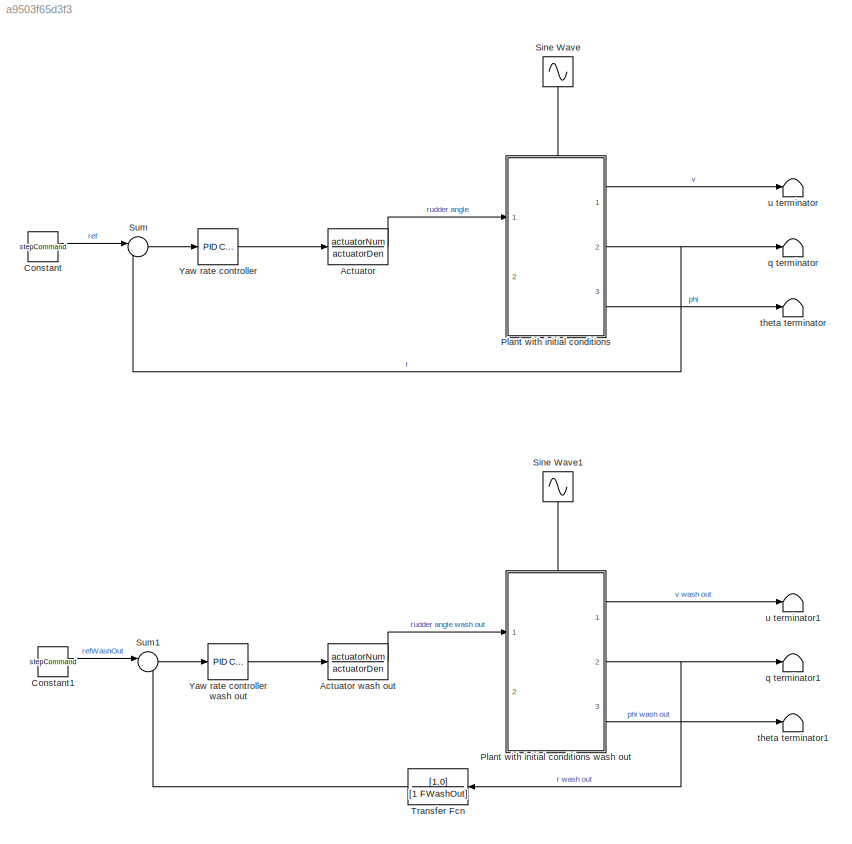
MODEL slx_a9503f65d3f3
KIND model
CONFIG AbsTol = auto
CONFIG EnableMultiTasking = off
CONFIG FixedStep = auto
CONFIG MaxStep = auto
CONFIG MinStep = auto
CONFIG RelTol = 1e-3
CONFIG SampleTimeConstraint = Unconstrained
CONFIG SolverName = ode15s
CONFIG StartTime = 0.0
CONFIG StopTime = 5
BLOCK [TransferFcn] Actuator
  Denominator = actuatorDen
  Numerator = actuatorNum
BLOCK [TransferFcn] Actuator wash out
  Denominator = actuatorDen
  Numerator = actuatorNum
BLOCK [Constant] Constant
  NameLocation = top
  Value = stepCommand
BLOCK [Constant] Constant1
  NameLocation = top
  Value = stepCommand
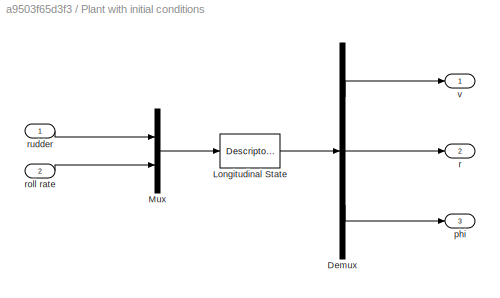
BLOCK [SubSystem] Plant with initial conditions
  PortSchema = {"entries":[{"content":{"sides":[{"content":{"connectorIds":["In1"]},"type":"ConnectorPlacement.EquallySpacedRectSide","uuid":"9289d697-068e-4568-8078-07f153e8e6b2"},{"content":{"connectorIds":["Out1","Out2","Out3"],"side":"RIGHT"},"type":"ConnectorPlacement.EquallySpacedRectSide","uuid":"07e3031a-d198-40ae-947d-4a1b1bfc261d"},{"content":{"connectorIds":["In2"],"side":"TOP"},"type":"ConnectorPlace...<+403ch>
  Ports = [2, 3]
  RequestExecContextInheritance = off
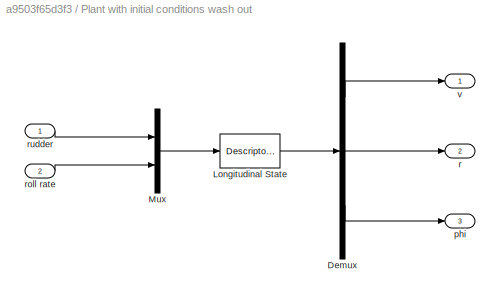
BLOCK [SubSystem] Plant with initial conditions wash out
  PortSchema = {"entries":[{"content":{"sides":[{"content":{"connectorIds":["In1"]},"type":"ConnectorPlacement.EquallySpacedRectSide","uuid":"9289d697-068e-4568-8078-07f153e8e6b2"},{"content":{"connectorIds":["Out1","Out2","Out3"],"side":"RIGHT"},"type":"ConnectorPlacement.EquallySpacedRectSide","uuid":"07e3031a-d198-40ae-947d-4a1b1bfc261d"},{"content":{"connectorIds":["In2"],"side":"TOP"},"type":"ConnectorPlace...<+403ch>
  Ports = [2, 3]
  RequestExecContextInheritance = off
BLOCK [Demux] Plant with initial conditions wash out/Demux
  Outputs = 3
  Ports = [1, 3]
BLOCK [DescriptorStateSpace] Plant with initial conditions wash out/Longitudinal State 
  A = ALatWashOut
  B = BLatWashOut
  C = CLatWashOut
  ContinuousStateAttributes = 'LateralSystem'
  D = DLatWashOut
  E = ELatWashOut
  InitialCondition = InitialConditionsWashOut
  Ports = [1, 1]
BLOCK [Mux] Plant with initial conditions wash out/Mux
  DisplayOption = bar
  Inputs = 2
  Ports = [2, 1]
BLOCK [Outport] Plant with initial conditions wash out/phi
  Port = 3
BLOCK [Outport] Plant with initial conditions wash out/r
  Port = 2
BLOCK [Inport] Plant with initial conditions wash out/roll rate
  Port = 2
BLOCK [Inport] Plant with initial conditions wash out/rudder
BLOCK [Outport] Plant with initial conditions wash out/v
BLOCK [Demux] Plant with initial conditions/Demux
  Outputs = 3
  Ports = [1, 3]
BLOCK [DescriptorStateSpace] Plant with initial conditions/Longitudinal State 
  A = ALatWashOut
  B = BLatWashOut
  C = CLatWashOut
  ContinuousStateAttributes = 'LateralSystem'
  D = DLatWashOut
  E = ELatWashOut
  InitialCondition = InitialConditionsWashOut
  Ports = [1, 1]
BLOCK [Mux] Plant with initial conditions/Mux
  DisplayOption = bar
  Inputs = 2
  Ports = [2, 1]
BLOCK [Outport] Plant with initial conditions/phi
  Port = 3
BLOCK [Outport] Plant with initial conditions/r
  Port = 2
BLOCK [Inport] Plant with initial conditions/roll rate
  Port = 2
BLOCK [Inport] Plant with initial conditions/rudder
BLOCK [Outport] Plant with initial conditions/v
BLOCK [Sin] Sine Wave
  Amplitude = 0
  Frequency = FRoll
  NameLocation = left
  Ports = [0, 1]
  SampleTime = 0
BLOCK [Sin] Sine Wave1
  Amplitude = 0
  Frequency = FRoll
  NameLocation = left
  Ports = [0, 1]
  SampleTime = 0
BLOCK [Sum] Sum
  Inputs = |-+
  Ports = [2, 1]
BLOCK [Sum] Sum1
  Inputs = |-+
  Ports = [2, 1]
BLOCK [TransferFcn] Transfer Fcn
  Denominator = [1 FWashOut]
  NameLocation = top
  Numerator = [1,0]
BLOCK [Reference] Yaw rate controller  REF=slpidlib/PID Controller
  Ports = [1, 1]
  SourceBlock = slpidlib/PID Controller
  SourceProductBaseCode = SL
  SourceType = PID 1dof
BLOCK [Reference] Yaw rate controller wash out   REF=slpidlib/PID Controller
  Ports = [1, 1]
  SourceBlock = slpidlib/PID Controller
  SourceProductBaseCode = SL
  SourceType = PID 1dof
BLOCK [Terminator] q terminator
BLOCK [Terminator] q terminator1
BLOCK [Terminator] theta terminator
BLOCK [Terminator] theta terminator1
BLOCK [Terminator] u terminator
BLOCK [Terminator] u terminator1
LINE Actuator wash out:1 -> Plant with initial conditions wash out:1
LINE Actuator:1 -> Plant with initial conditions:1
LINE Constant1:1 -> Sum1:1
LINE Constant:1 -> Sum:1
LINE Plant with initial conditions wash out/Demux:1 -> Plant with initial conditions wash out/v:1
LINE Plant with initial conditions wash out/Demux:2 -> Plant with initial conditions wash out/r:1
LINE Plant with initial conditions wash out/Demux:3 -> Plant with initial conditions wash out/phi:1
LINE Plant with initial conditions wash out/Longitudinal State :1 -> Plant with initial conditions wash out/Demux:1
LINE Plant with initial conditions wash out/Mux:1 -> Plant with initial conditions wash out/Longitudinal State :1
LINE Plant with initial conditions wash out/roll rate:1 -> Plant with initial conditions wash out/Mux:2
LINE Plant with initial conditions wash out/rudder:1 -> Plant with initial conditions wash out/Mux:1
LINE Plant with initial conditions wash out:1 -> u terminator1:1
NET Plant with initial conditions wash out:2 -> Transfer Fcn:1, q terminator1:1
LINE Plant with initial conditions wash out:3 -> theta terminator1:1
LINE Plant with initial conditions/Demux:1 -> Plant with initial conditions/v:1
LINE Plant with initial conditions/Demux:2 -> Plant with initial conditions/r:1
LINE Plant with initial conditions/Demux:3 -> Plant with initial conditions/phi:1
LINE Plant with initial conditions/Longitudinal State :1 -> Plant with initial conditions/Demux:1
LINE Plant with initial conditions/Mux:1 -> Plant with initial conditions/Longitudinal State :1
LINE Plant with initial conditions/roll rate:1 -> Plant with initial conditions/Mux:2
LINE Plant with initial conditions/rudder:1 -> Plant with initial conditions/Mux:1
LINE Plant with initial conditions:1 -> u terminator:1
NET Plant with initial conditions:2 -> Sum:2, q terminator:1
LINE Plant with initial conditions:3 -> theta terminator:1
LINE Sine Wave1:1 -> Plant with initial conditions wash out:2
LINE Sine Wave:1 -> Plant with initial conditions:2
LINE Sum1:1 -> Yaw rate controller wash out :1
LINE Sum:1 -> Yaw rate controller:1
LINE Transfer Fcn:1 -> Sum1:2
LINE Yaw rate controller wash out :1 -> Actuator wash out:1
LINE Yaw rate controller:1 -> Actuator:1
note: NET lines group one-source signal fan-out (src -> all destinations, sorted); 1:1 wires keep LINE
